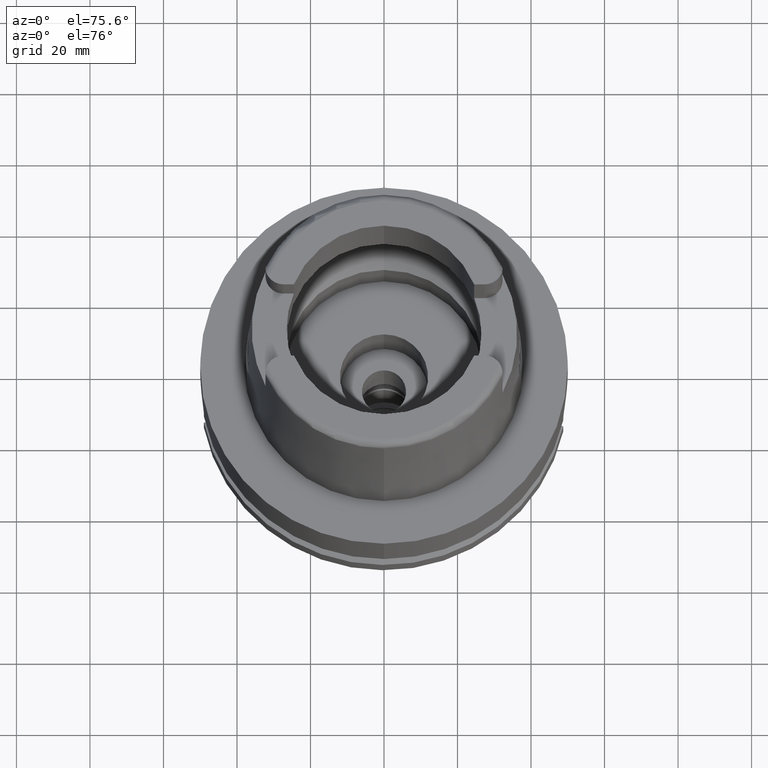
[diagram: clean part render]
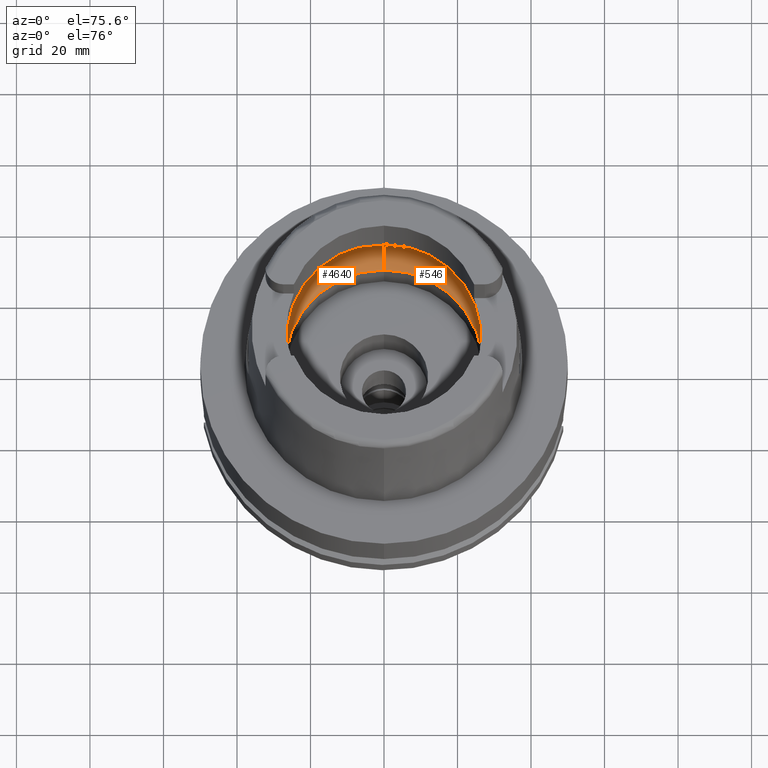
[diagram: same view with one multi-face feature highlighted, each face labeled with its STEP entity id]
A machine part, auxiliary view. The highlighted faces form ONE feature: a constant-radius fillet chain: 2 tangent blend faces with common blend radius 12 mm. The faces share edges in the B-rep.
Their STEP definitions:
[1] entity #546 (Torus):
#90 = TOROIDAL_SURFACE ( 'NONE', #3497, 19.50000000000000000, 12.00000000000000000 ) ;
#148 = EDGE_CURVE ( 'NONE', #2967, #2774, #4834, .T. ) ;
#254 = ORIENTED_EDGE ( 'NONE', *, *, #779, .F. ) ;
#321 = DIRECTION ( 'NONE',  ( 0.0000000000000000000, 1.000000000000000000, 0.0000000000000000000 ) ) ;
#472 = DIRECTION ( 'NONE',  ( 0.0000000000000000000, 0.0000000000000000000, -1.000000000000000000 ) ) ;
#503 = EDGE_CURVE ( 'NONE', #4779, #5136, #4479, .T. ) ;
#546 = ADVANCED_FACE ( 'NONE', ( #4598 ), #90, .F. ) ;
#594 = CARTESIAN_POINT ( 'NONE',  ( 31.48971910753999026, 0.8697454017787721314, 9.000000000000001776 ) ) ;
#620 = CIRCLE ( 'NONE', #1946, 31.49999999999998934 ) ;
#659 = ORIENTED_EDGE ( 'NONE', *, *, #503, .T. ) ;
#719 = DIRECTION ( 'NONE',  ( 0.0000000000000000000, -0.6166666666667049990, -0.7872243785746061429 ) ) ;
#779 = EDGE_CURVE ( 'NONE', #2774, #829, #3760, .T. ) ;
#829 = VERTEX_POINT ( 'NONE', #3926 ) ;
#967 = CARTESIAN_POINT ( 'NONE',  ( 31.40918884336000616, -2.390158196043999705, 9.496624327025999790 ) ) ;
#1020 = DIRECTION ( 'NONE',  ( 0.0000000000000000000, 1.000000000000000000, 0.0000000000000000000 ) ) ;
#1092 = CARTESIAN_POINT ( 'NONE',  ( 0.0000000000000000000, -31.50000000000000000, 9.496624327025999790 ) ) ;
#1135 = DIRECTION ( 'NONE',  ( 0.0000000000000000000, 0.6166666666667049990, -0.7872243785746061429 ) ) ;
#1241 = AXIS2_PLACEMENT_3D ( 'NONE', #1976, #4516, #719 ) ;
#1339 = AXIS2_PLACEMENT_3D ( 'NONE', #4855, #472, #1020 ) ;
#1828 = B_SPLINE_CURVE_WITH_KNOTS ( 'NONE', 3,
 ( #2233, #4931, #3955, #967 ),
 .UNSPECIFIED., .F., .F.,
 ( 4, 4 ),
 ( 0.0000000000000000000, 1.000000000000000000 ),
 .UNSPECIFIED. ) ;
#1838 = CARTESIAN_POINT ( 'NONE',  ( 31.48971910754000447, 0.0000000000000000000, 9.000000000000000000 ) ) ;
#1856 = ORIENTED_EDGE ( 'NONE', *, *, #4682, .F. ) ;
#1868 = CARTESIAN_POINT ( 'NONE',  ( 31.40918884336000616, 2.390158196043999705, 9.496624327025999790 ) ) ;
#1934 = CIRCLE ( 'NONE', #5087, 26.89999999999999858 ) ;
#1946 = AXIS2_PLACEMENT_3D ( 'NONE', #2823, #5343, #4967 ) ;
#1976 = CARTESIAN_POINT ( 'NONE',  ( 0.0000000000000000000, -19.50000000000000000, 9.496624327025999790 ) ) ;
#2233 = CARTESIAN_POINT ( 'NONE',  ( 31.48971910754000447, 0.0000000000000000000, 9.000000000000000000 ) ) ;
#2567 = CARTESIAN_POINT ( 'NONE',  ( 0.0000000000000000000, 26.89999999999999858, 0.04993178413034000257 ) ) ;
#2774 = VERTEX_POINT ( 'NONE', #4527 ) ;
#2823 = CARTESIAN_POINT ( 'NONE',  ( 0.0000000000000000000, 0.0000000000000000000, 9.496624327025999790 ) ) ;
#2967 = VERTEX_POINT ( 'NONE', #2567 ) ;
#3103 = EDGE_CURVE ( 'NONE', #4779, #2967, #1934, .T. ) ;
#3174 = ORIENTED_EDGE ( 'NONE', *, *, #3103, .F. ) ;
#3182 = DIRECTION ( 'NONE',  ( 0.0000000000000000000, -1.000000000000000000, 0.0000000000000000000 ) ) ;
#3375 = ORIENTED_EDGE ( 'NONE', *, *, #5360, .F. ) ;
#3497 = AXIS2_PLACEMENT_3D ( 'NONE', #4940, #4181, #321 ) ;
#3586 = CARTESIAN_POINT ( 'NONE',  ( 31.40918884336000616, -2.390158196043999705, 9.496624327025999790 ) ) ;
#3665 = CARTESIAN_POINT ( 'NONE',  ( 0.0000000000000000000, -26.89999999999999858, 0.04993178413032000468 ) ) ;
#3678 = CARTESIAN_POINT ( 'NONE',  ( 0.0000000000000000000, 19.50000000000000000, 9.496624327025999790 ) ) ;
#3689 = CARTESIAN_POINT ( 'NONE',  ( 0.0000000000000000000, 0.0000000000000000000, 0.04993178413033000362 ) ) ;
#3712 = VERTEX_POINT ( 'NONE', #3586 ) ;
#3730 = DIRECTION ( 'NONE',  ( 1.000000000000000000, 0.0000000000000000000, 0.0000000000000000000 ) ) ;
#3760 = CIRCLE ( 'NONE', #1339, 31.50000000000000000 ) ;
#3926 = CARTESIAN_POINT ( 'NONE',  ( 31.40918884336000616, 2.390158196043999705, 9.496624327025999790 ) ) ;
#3955 = CARTESIAN_POINT ( 'NONE',  ( 31.46287568614665986, -1.684656699965325632, 9.190219625007294724 ) ) ;
#4181 = DIRECTION ( 'NONE',  ( 0.0000000000000000000, 0.0000000000000000000, 1.000000000000000000 ) ) ;
#4183 = B_SPLINE_CURVE_WITH_KNOTS ( 'NONE', 3,
 ( #1868, #4811, #594, #1838 ),
 .UNSPECIFIED., .F., .F.,
 ( 4, 4 ),
 ( 0.0000000000000000000, 1.000000000000000000 ),
 .UNSPECIFIED. ) ;
#4312 = VERTEX_POINT ( 'NONE', #5254 ) ;
#4479 = CIRCLE ( 'NONE', #1241, 11.99999999999999822 ) ;
#4516 = DIRECTION ( 'NONE',  ( -1.000000000000000000, 0.0000000000000000000, 0.0000000000000000000 ) ) ;
#4527 = CARTESIAN_POINT ( 'NONE',  ( 0.0000000000000000000, 31.50000000000000000, 9.496624327025999790 ) ) ;
#4598 = FACE_OUTER_BOUND ( 'NONE', #5525, .T. ) ;
#4682 = EDGE_CURVE ( 'NONE', #4312, #3712, #1828, .T. ) ;
#4779 = VERTEX_POINT ( 'NONE', #3665 ) ;
#4810 = ORIENTED_EDGE ( 'NONE', *, *, #148, .F. ) ;
#4811 = CARTESIAN_POINT ( 'NONE',  ( 31.46287568614665986, 1.684656700008886121, 9.190219625026216477 ) ) ;
#4834 = CIRCLE ( 'NONE', #5559, 11.99999999999999822 ) ;
#4855 = CARTESIAN_POINT ( 'NONE',  ( 0.0000000000000000000, 0.0000000000000000000, 9.496624327025999790 ) ) ;
#4931 = CARTESIAN_POINT ( 'NONE',  ( 31.48971910753999026, -0.8697454017312684638, 8.999999999999998224 ) ) ;
#4940 = CARTESIAN_POINT ( 'NONE',  ( 0.0000000000000000000, 0.0000000000000000000, 9.496624327025999790 ) ) ;
#4967 = DIRECTION ( 'NONE',  ( 0.9971171061384295209, -0.07587803796965221503, 0.0000000000000000000 ) ) ;
#5010 = DIRECTION ( 'NONE',  ( 0.0000000000000000000, 0.0000000000000000000, 1.000000000000000000 ) ) ;
#5057 = ORIENTED_EDGE ( 'NONE', *, *, #5527, .F. ) ;
#5087 = AXIS2_PLACEMENT_3D ( 'NONE', #3689, #5010, #3182 ) ;
#5136 = VERTEX_POINT ( 'NONE', #1092 ) ;
#5254 = CARTESIAN_POINT ( 'NONE',  ( 31.48971910754000447, 0.0000000000000000000, 9.000000000000000000 ) ) ;
#5343 = DIRECTION ( 'NONE',  ( 0.0000000000000000000, 0.0000000000000000000, -1.000000000000000000 ) ) ;
#5360 = EDGE_CURVE ( 'NONE', #829, #4312, #4183, .T. ) ;
#5525 = EDGE_LOOP ( 'NONE', ( #3375, #254, #4810, #3174, #659, #5057, #1856 ) ) ;
#5527 = EDGE_CURVE ( 'NONE', #3712, #5136, #620, .T. ) ;
#5559 = AXIS2_PLACEMENT_3D ( 'NONE', #3678, #3730, #1135 ) ;
[2] entity #4640 (Torus):
#148 = EDGE_CURVE ( 'NONE', #2967, #2774, #4834, .T. ) ;
#244 = AXIS2_PLACEMENT_3D ( 'NONE', #4041, #5413, #1569 ) ;
#309 = CIRCLE ( 'NONE', #1827, 31.50000000000000000 ) ;
#392 = CARTESIAN_POINT ( 'NONE',  ( -31.46287568614665986, -1.684656700029165899, 9.190219625035021878 ) ) ;
#422 = CARTESIAN_POINT ( 'NONE',  ( -31.40918884336000616, -2.390158196043999705, 9.496624327025999790 ) ) ;
#503 = EDGE_CURVE ( 'NONE', #4779, #5136, #4479, .T. ) ;
#505 = AXIS2_PLACEMENT_3D ( 'NONE', #1073, #3531, #5308 ) ;
#719 = DIRECTION ( 'NONE',  ( 0.0000000000000000000, -0.6166666666667049990, -0.7872243785746061429 ) ) ;
#839 = CARTESIAN_POINT ( 'NONE',  ( -31.48971910754000447, 0.0000000000000000000, 9.000000000000000000 ) ) ;
#1073 = CARTESIAN_POINT ( 'NONE',  ( 0.0000000000000000000, 0.0000000000000000000, 9.496624327025999790 ) ) ;
#1092 = CARTESIAN_POINT ( 'NONE',  ( 0.0000000000000000000, -31.50000000000000000, 9.496624327025999790 ) ) ;
#1135 = DIRECTION ( 'NONE',  ( 0.0000000000000000000, 0.6166666666667049990, -0.7872243785746061429 ) ) ;
#1241 = AXIS2_PLACEMENT_3D ( 'NONE', #1976, #4516, #719 ) ;
#1262 = DIRECTION ( 'NONE',  ( 0.0000000000000000000, 0.0000000000000000000, -1.000000000000000000 ) ) ;
#1569 = DIRECTION ( 'NONE',  ( -0.9971171061384295209, 0.07587803796965221503, 0.0000000000000000000 ) ) ;
#1741 = CARTESIAN_POINT ( 'NONE',  ( -31.46287568614665986, 1.684656699916923683, 9.190219624986275093 ) ) ;
#1827 = AXIS2_PLACEMENT_3D ( 'NONE', #3820, #1262, #2888 ) ;
#1976 = CARTESIAN_POINT ( 'NONE',  ( 0.0000000000000000000, -19.50000000000000000, 9.496624327025999790 ) ) ;
#2077 = CARTESIAN_POINT ( 'NONE',  ( -31.48971910754000447, 0.0000000000000000000, 9.000000000000000000 ) ) ;
#2097 = B_SPLINE_CURVE_WITH_KNOTS ( 'NONE', 3,
 ( #422, #392, #5085, #839 ),
 .UNSPECIFIED., .F., .F.,
 ( 4, 4 ),
 ( 0.0000000000000000000, 1.000000000000000000 ),
 .UNSPECIFIED. ) ;
#2134 = CARTESIAN_POINT ( 'NONE',  ( -31.40918884336000616, 2.390158196043999705, 9.496624327025999790 ) ) ;
#2367 = AXIS2_PLACEMENT_3D ( 'NONE', #3073, #2532, #4741 ) ;
#2371 = ORIENTED_EDGE ( 'NONE', *, *, #503, .F. ) ;
#2391 = ORIENTED_EDGE ( 'NONE', *, *, #3104, .F. ) ;
#2521 = CARTESIAN_POINT ( 'NONE',  ( -31.40918884336000616, 2.390158196043999705, 9.496624327025999790 ) ) ;
#2532 = DIRECTION ( 'NONE',  ( 0.0000000000000000000, 0.0000000000000000000, 1.000000000000000000 ) ) ;
#2553 = CARTESIAN_POINT ( 'NONE',  ( -31.48971910754000447, 0.8697454016785111097, 9.000000000000001776 ) ) ;
#2567 = CARTESIAN_POINT ( 'NONE',  ( 0.0000000000000000000, 26.89999999999999858, 0.04993178413034000257 ) ) ;
#2644 = CIRCLE ( 'NONE', #2367, 26.89999999999999858 ) ;
#2774 = VERTEX_POINT ( 'NONE', #4527 ) ;
#2834 = CARTESIAN_POINT ( 'NONE',  ( -31.40918884336000616, -2.390158196043999705, 9.496624327025999790 ) ) ;
#2877 = ORIENTED_EDGE ( 'NONE', *, *, #5225, .F. ) ;
#2888 = DIRECTION ( 'NONE',  ( 0.0000000000000000000, -1.000000000000000000, 0.0000000000000000000 ) ) ;
#2967 = VERTEX_POINT ( 'NONE', #2567 ) ;
#3073 = CARTESIAN_POINT ( 'NONE',  ( 0.0000000000000000000, 0.0000000000000000000, 0.04993178413032000468 ) ) ;
#3104 = EDGE_CURVE ( 'NONE', #3409, #2774, #5546, .T. ) ;
#3245 = B_SPLINE_CURVE_WITH_KNOTS ( 'NONE', 3,
 ( #2077, #2553, #1741, #2134 ),
 .UNSPECIFIED., .F., .F.,
 ( 4, 4 ),
 ( 0.0000000000000000000, 1.000000000000000000 ),
 .UNSPECIFIED. ) ;
#3409 = VERTEX_POINT ( 'NONE', #2521 ) ;
#3531 = DIRECTION ( 'NONE',  ( 0.0000000000000000000, 0.0000000000000000000, 1.000000000000000000 ) ) ;
#3554 = FACE_OUTER_BOUND ( 'NONE', #5324, .T. ) ;
#3665 = CARTESIAN_POINT ( 'NONE',  ( 0.0000000000000000000, -26.89999999999999858, 0.04993178413032000468 ) ) ;
#3678 = CARTESIAN_POINT ( 'NONE',  ( 0.0000000000000000000, 19.50000000000000000, 9.496624327025999790 ) ) ;
#3700 = VERTEX_POINT ( 'NONE', #4405 ) ;
#3730 = DIRECTION ( 'NONE',  ( 1.000000000000000000, 0.0000000000000000000, 0.0000000000000000000 ) ) ;
#3820 = CARTESIAN_POINT ( 'NONE',  ( 0.0000000000000000000, 0.0000000000000000000, 9.496624327025999790 ) ) ;
#3825 = TOROIDAL_SURFACE ( 'NONE', #505, 19.50000000000000000, 12.00000000000000000 ) ;
#3972 = EDGE_CURVE ( 'NONE', #5136, #5079, #309, .T. ) ;
#4041 = CARTESIAN_POINT ( 'NONE',  ( 0.0000000000000000000, 0.0000000000000000000, 9.496624327025999790 ) ) ;
#4149 = ORIENTED_EDGE ( 'NONE', *, *, #148, .T. ) ;
#4405 = CARTESIAN_POINT ( 'NONE',  ( -31.48971910754000447, 0.0000000000000000000, 9.000000000000000000 ) ) ;
#4425 = ORIENTED_EDGE ( 'NONE', *, *, #4995, .F. ) ;
#4431 = ORIENTED_EDGE ( 'NONE', *, *, #4485, .F. ) ;
#4479 = CIRCLE ( 'NONE', #1241, 11.99999999999999822 ) ;
#4485 = EDGE_CURVE ( 'NONE', #2967, #4779, #2644, .T. ) ;
#4516 = DIRECTION ( 'NONE',  ( -1.000000000000000000, 0.0000000000000000000, 0.0000000000000000000 ) ) ;
#4527 = CARTESIAN_POINT ( 'NONE',  ( 0.0000000000000000000, 31.50000000000000000, 9.496624327025999790 ) ) ;
#4640 = ADVANCED_FACE ( 'NONE', ( #3554 ), #3825, .F. ) ;
#4741 = DIRECTION ( 'NONE',  ( 0.0000000000000000000, 1.000000000000000000, 0.0000000000000000000 ) ) ;
#4779 = VERTEX_POINT ( 'NONE', #3665 ) ;
#4834 = CIRCLE ( 'NONE', #5559, 11.99999999999999822 ) ;
#4995 = EDGE_CURVE ( 'NONE', #3700, #3409, #3245, .T. ) ;
#5079 = VERTEX_POINT ( 'NONE', #2834 ) ;
#5085 = CARTESIAN_POINT ( 'NONE',  ( -31.48971910754000447, -0.8697454018008697885, 8.999999999999998224 ) ) ;
#5136 = VERTEX_POINT ( 'NONE', #1092 ) ;
#5225 = EDGE_CURVE ( 'NONE', #5079, #3700, #2097, .T. ) ;
#5308 = DIRECTION ( 'NONE',  ( 0.0000000000000000000, 1.000000000000000000, 0.0000000000000000000 ) ) ;
#5324 = EDGE_LOOP ( 'NONE', ( #5516, #2371, #4431, #4149, #2391, #4425, #2877 ) ) ;
#5413 = DIRECTION ( 'NONE',  ( 0.0000000000000000000, 0.0000000000000000000, -1.000000000000000000 ) ) ;
#5516 = ORIENTED_EDGE ( 'NONE', *, *, #3972, .F. ) ;
#5546 = CIRCLE ( 'NONE', #244, 31.49999999999998934 ) ;
#5559 = AXIS2_PLACEMENT_3D ( 'NONE', #3678, #3730, #1135 ) ;